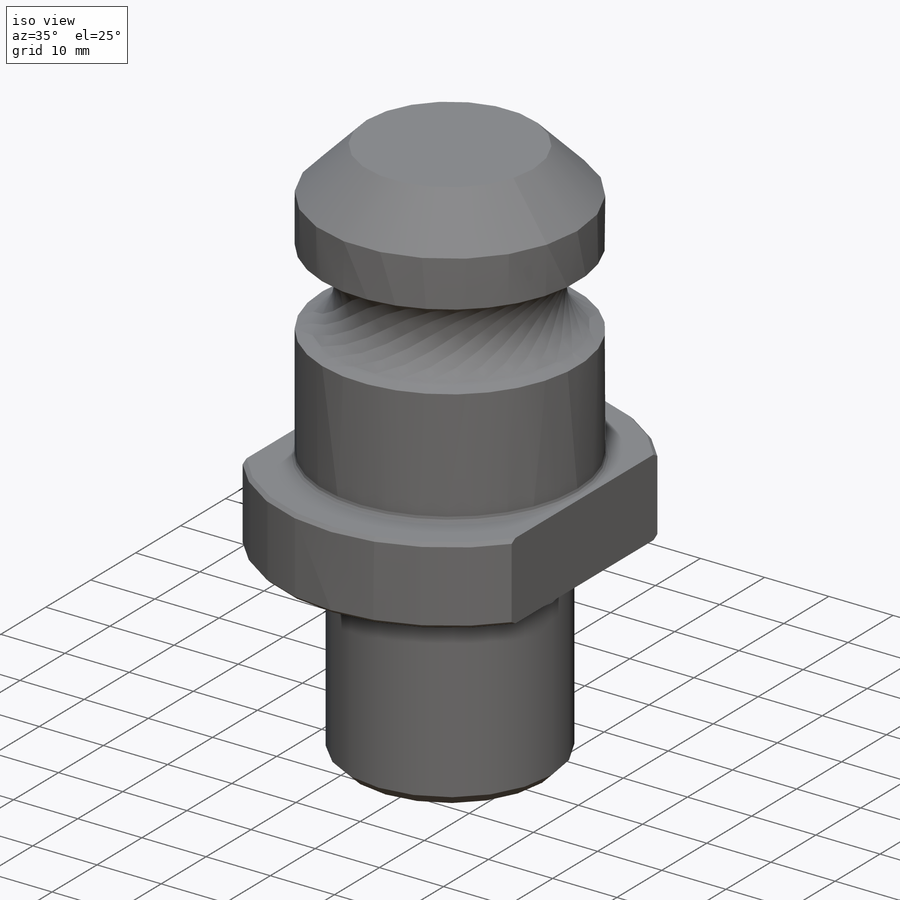
[diagram: iso view]
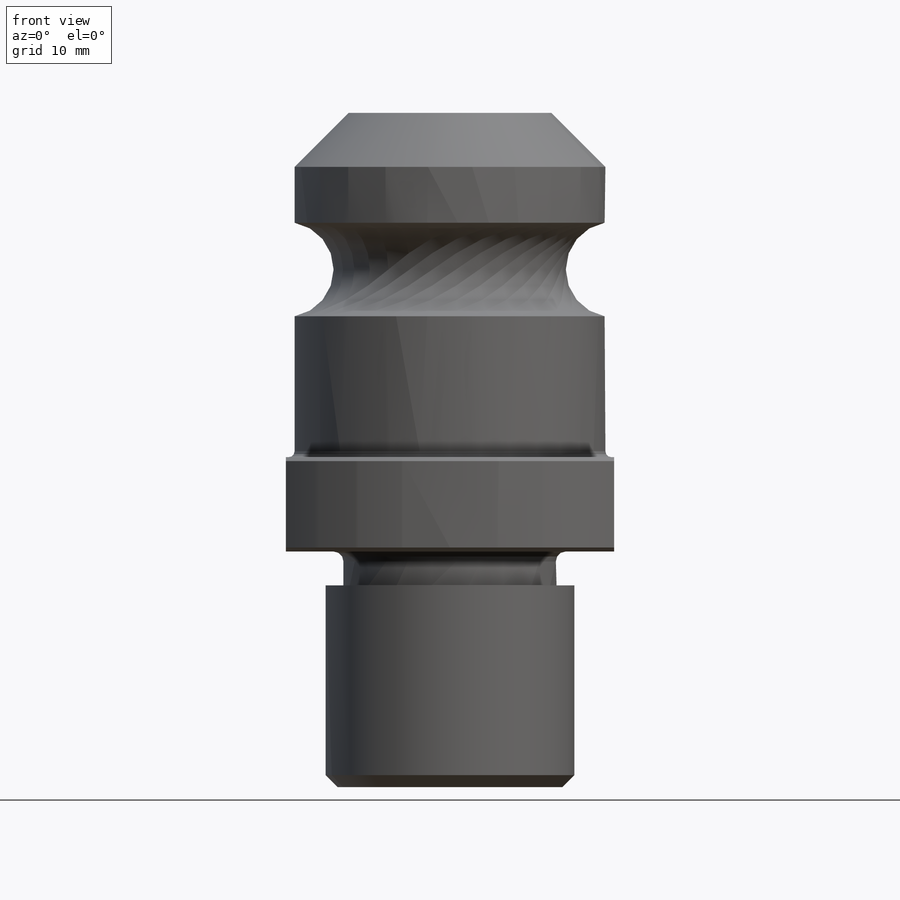
[diagram: front view]
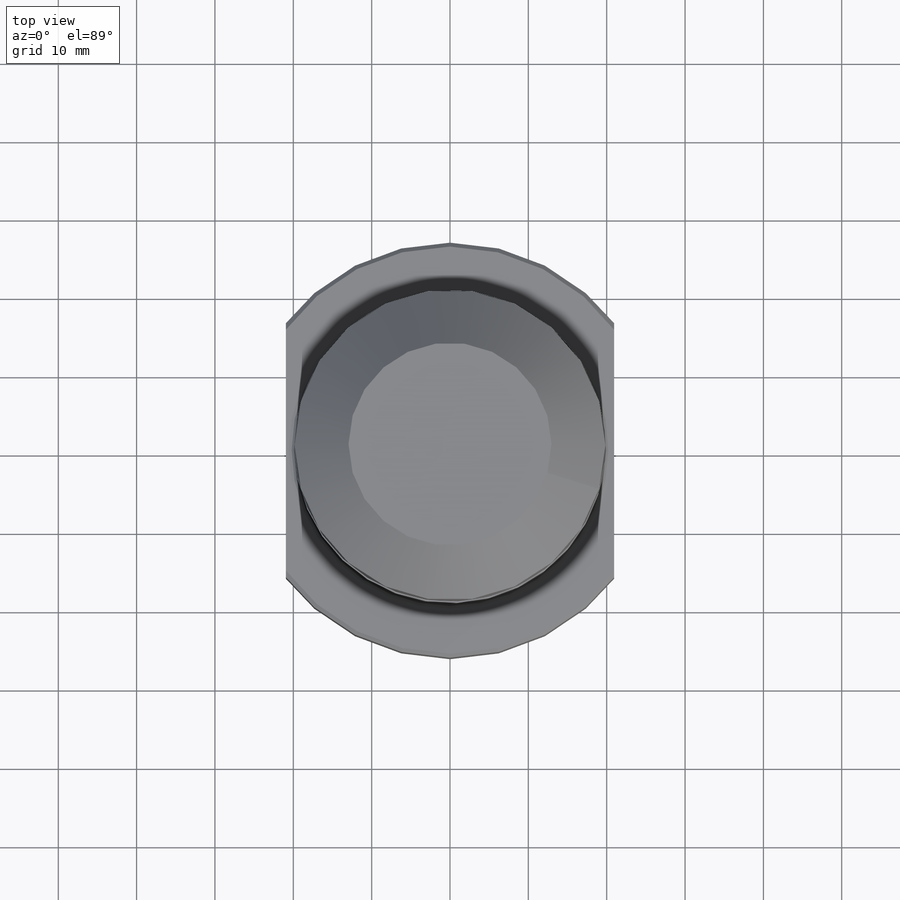
[diagram: top view]
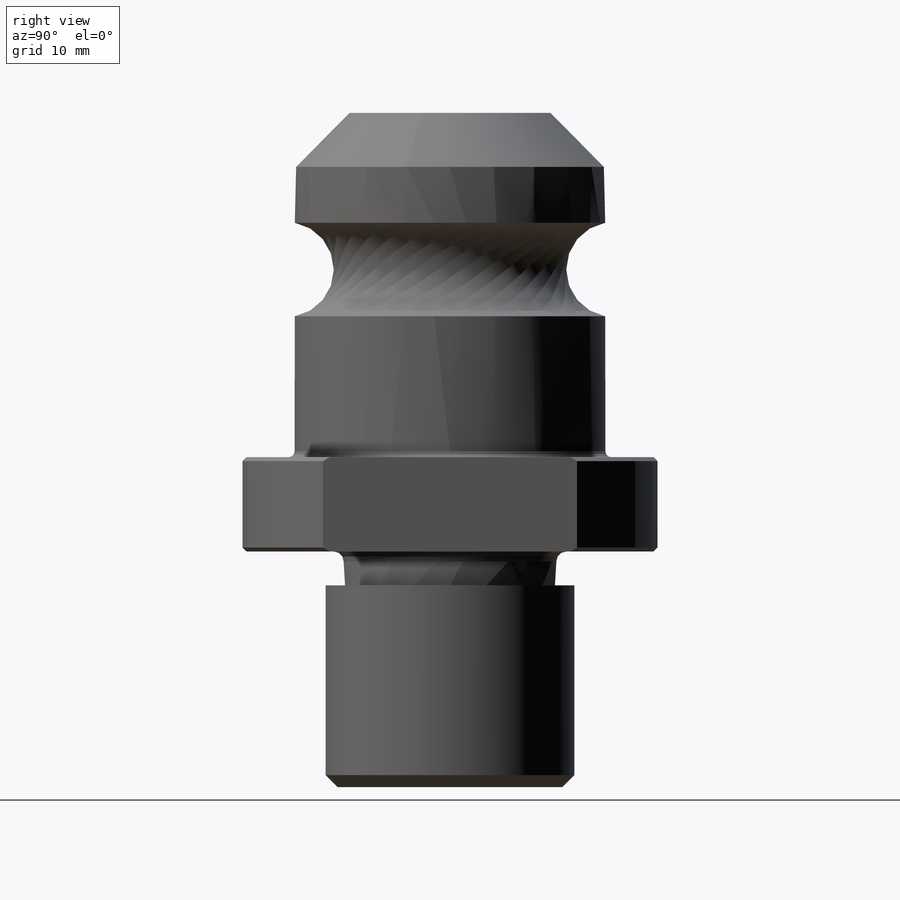
[diagram: right view]
SOLIDWORKS PART (.sldprt)
format: sldprt  version: not decoded by parser v0  size: 300,032 bytes
history: native  units: mm
features: sketch x2, chamfer x2, material x1, revolve x1, cut_extrude x1, fillet x1 (+13 scaffold rows collapsed)
feature tree (21):
  scaffold x13  (default folders/planes/origin — collapsed)
  material  "Material <not specified>"
  sketch  "Sketch1"  dims[c1.D13=~4.22757mm c1.D14=1.27mm c1.D15=~6.067555mm c1.D1=31.75mm c1.D2=27.2034mm c1.D3=52.9844mm c1.D4=39.6748mm c1.D5=30.0736mm c1.D6=12.0396mm c1.D7=4.318mm c1.D8=~3.239158mm c2.D8=45.0deg c2.D9=25.908mm c2.D10=34.29mm c2.D11=17.9832mm c2.D12=11.938mm c2.D13=29.718mm c3.D10=43.942mm]
  revolve  "Revolve1"  Angle=360deg
  chamfer  "Chamfer1"  Distance=0.508mm Angle=45deg
  chamfer  "Chamfer2"  Distance=1.524mm Angle=45deg
  sketch  "Sketch2"  dims[D1=20.955mm D2=20.955mm]
  cut_extrude  "Cut-Extrude1"  [1 undecoded]
  fillet  "Fillet1"  Radius=0.762mm
decode coverage: 6 of 7 modeling features carry decoded parameters
note: ~ marks probable driven/reference dimensions
note: 1 parameter value undecoded
note: suppression state not decoded; provenance and decode notes live in map.json
